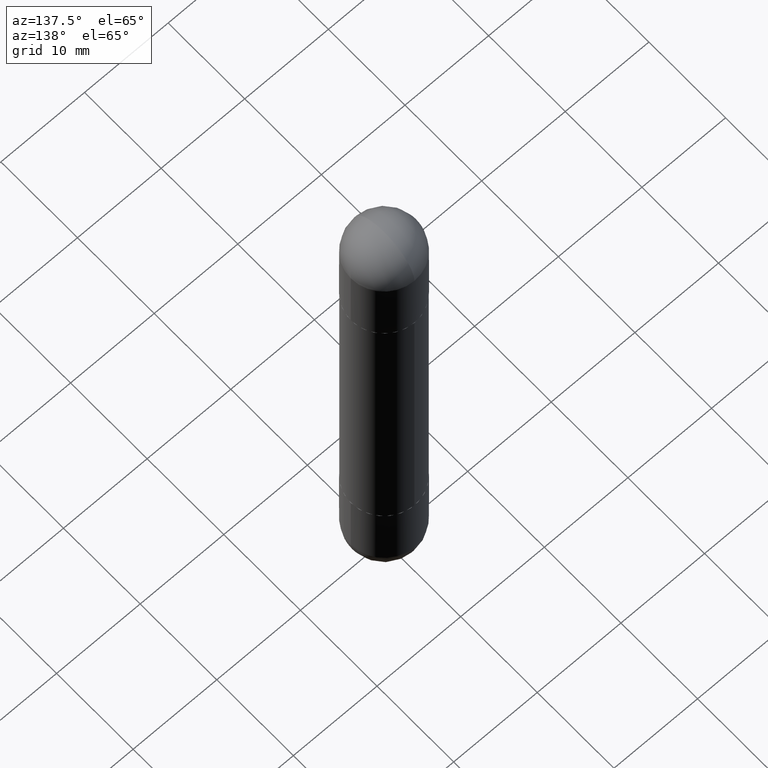
[diagram: clean part render]
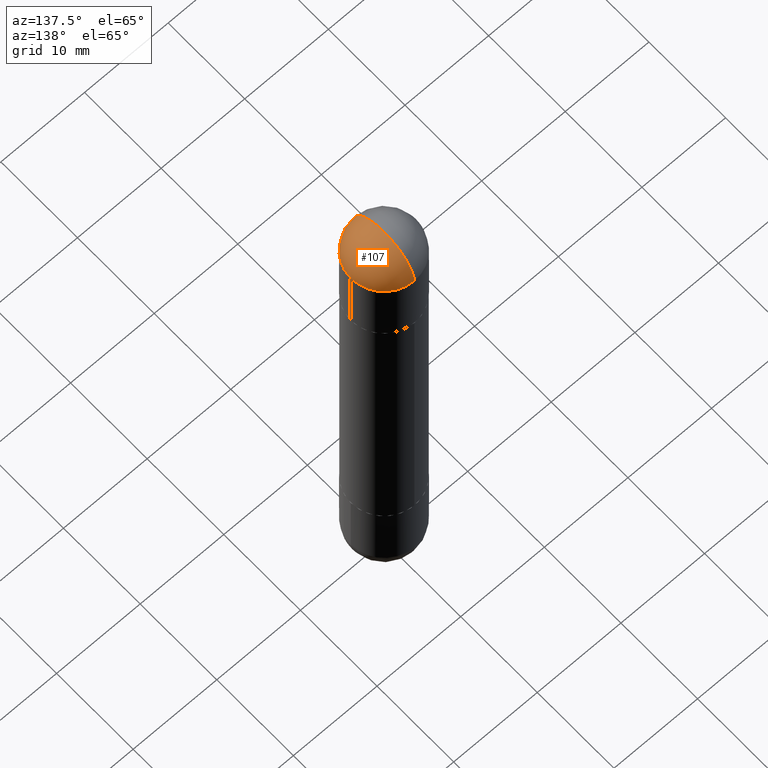
[diagram: same view with one face highlighted and labeled with its STEP entity id]
A machine part, auxiliary view. The second image highlights one B-rep face of the part: STEP entity #107.
In plain terms, the highlighted spherical surface has radius 3.9688 mm.
Its self-contained STEP definition (entity closure, byte-faithful):
#26 = CARTESIAN_POINT ( 'NONE',  ( 5.400447736582527652E-29, -8.657341756053672891E-15, -0.1562500000000005551 ) ) ;
#27 = EDGE_CURVE ( 'NONE', #489, #440, #34, .T. ) ;
#34 = CIRCLE ( 'NONE', #729, 0.1562500000000002498 ) ;
#76 = CARTESIAN_POINT ( 'NONE',  ( 5.400447736582527652E-29, -8.657341756053672891E-15, -0.1562500000000005551 ) ) ;
#83 = FACE_OUTER_BOUND ( 'NONE', #619, .T. ) ;
#107 = ADVANCED_FACE ( 'NONE', ( #83 ), #383, .T. ) ;
#130 = AXIS2_PLACEMENT_3D ( 'NONE', #758, #818, #621 ) ;
#162 = DIRECTION ( 'NONE',  ( 1.000000000000000000, -6.860497997771530774E-15, -4.840798879624142912E-29 ) ) ;
#167 = CARTESIAN_POINT ( 'NONE',  ( 5.789233224183170584E-29, -9.193318162129576161E-15, -3.073328992872296367E-16 ) ) ;
#249 = EDGE_CURVE ( 'NONE', #489, #816, #354, .T. ) ;
#269 = DIRECTION ( 'NONE',  ( 1.000000000000000000, -6.982962677686265922E-15, -4.883557194083112340E-29 ) ) ;
#273 = CIRCLE ( 'NONE', #130, 0.1562500000000000000 ) ;
#283 = DIRECTION ( 'NONE',  ( 6.860497997771530774E-15, 1.000000000000000000, 0.000000000000000000 ) ) ;
#285 = DIRECTION ( 'NONE',  ( 2.445468806185136597E-29, -3.491481338843145583E-15, 1.000000000000000000 ) ) ;
#291 = CARTESIAN_POINT ( 'NONE',  ( 0.1562500000000000000, -8.674148951188436448E-15, -0.1562500000000005551 ) ) ;
#324 = AXIS2_PLACEMENT_3D ( 'NONE', #711, #285, #644 ) ;
#354 = CIRCLE ( 'NONE', #811, 0.1562500000000002498 ) ;
#365 = CIRCLE ( 'NONE', #324, 0.1562500000000000000 ) ;
#383 = SPHERICAL_SURFACE ( 'NONE', #794, 0.1562500000000002498 ) ;
#440 = VERTEX_POINT ( 'NONE', #490 ) ;
#452 = DIRECTION ( 'NONE',  ( 6.982962677686265922E-15, 1.000000000000000000, 3.496765431890251398E-15 ) ) ;
#475 = VERTEX_POINT ( 'NONE', #291 ) ;
#489 = VERTEX_POINT ( 'NONE', #167 ) ;
#490 = CARTESIAN_POINT ( 'NONE',  ( 1.091087918388535577E-15, 0.1562499999999916733, -0.1562500000000000000 ) ) ;
#495 = ORIENTED_EDGE ( 'NONE', *, *, #27, .F. ) ;
#502 = DIRECTION ( 'NONE',  ( -1.000000000000000000, 6.982962677686265922E-15, 4.883557194083112340E-29 ) ) ;
#503 = ORIENTED_EDGE ( 'NONE', *, *, #646, .T. ) ;
#619 = EDGE_LOOP ( 'NONE', ( #495, #741, #634, #503 ) ) ;
#621 = DIRECTION ( 'NONE',  ( 1.000000000000000000, -6.982962677686262766E-15, 0.000000000000000000 ) ) ;
#626 = DIRECTION ( 'NONE',  ( -6.982962677686265922E-15, -1.000000000000000000, 0.000000000000000000 ) ) ;
#634 = ORIENTED_EDGE ( 'NONE', *, *, #761, .T. ) ;
#644 = DIRECTION ( 'NONE',  ( 1.000000000000000000, -6.982962677686262766E-15, 0.000000000000000000 ) ) ;
#646 = EDGE_CURVE ( 'NONE', #475, #440, #273, .T. ) ;
#653 = CARTESIAN_POINT ( 'NONE',  ( -1.071952812151746981E-15, -0.1562500000000085487, -0.1562500000000011102 ) ) ;
#686 = CARTESIAN_POINT ( 'NONE',  ( 5.400447736582527652E-29, -8.657341756053672891E-15, -0.1562500000000005551 ) ) ;
#711 = CARTESIAN_POINT ( 'NONE',  ( 5.731567514496413899E-29, -8.183159387913622595E-15, -0.1562500000000005551 ) ) ;
#729 = AXIS2_PLACEMENT_3D ( 'NONE', #686, #502, #626 ) ;
#741 = ORIENTED_EDGE ( 'NONE', *, *, #249, .T. ) ;
#758 = CARTESIAN_POINT ( 'NONE',  ( 5.731567514496413899E-29, -8.183159387913622595E-15, -0.1562500000000005551 ) ) ;
#761 = EDGE_CURVE ( 'NONE', #816, #475, #365, .T. ) ;
#794 = AXIS2_PLACEMENT_3D ( 'NONE', #76, #269, #452 ) ;
#811 = AXIS2_PLACEMENT_3D ( 'NONE', #26, #162, #283 ) ;
#816 = VERTEX_POINT ( 'NONE', #653 ) ;
#818 = DIRECTION ( 'NONE',  ( 2.445468806185136597E-29, -3.491481338843145583E-15, 1.000000000000000000 ) ) ;